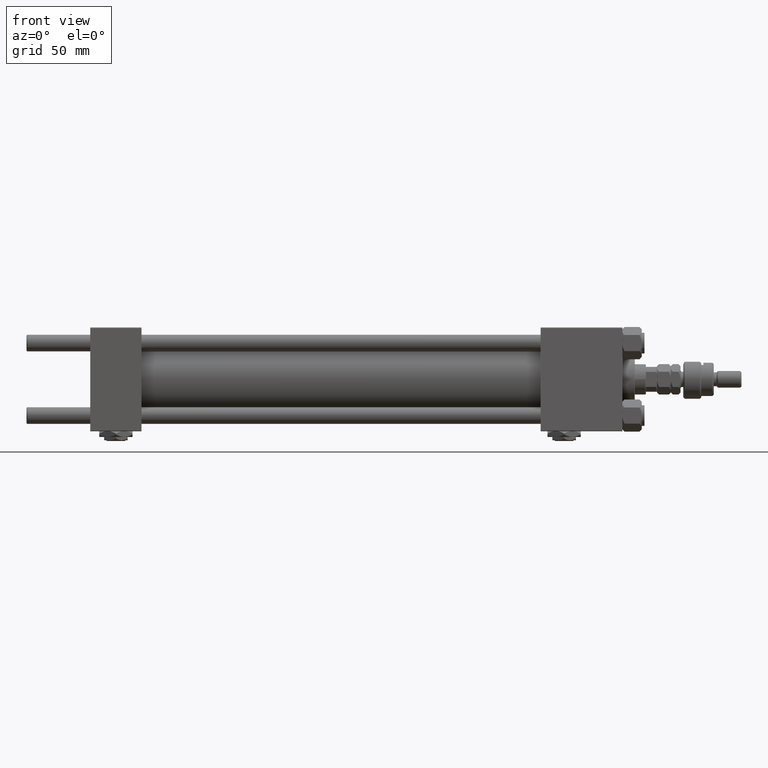
[diagram: clean part render]
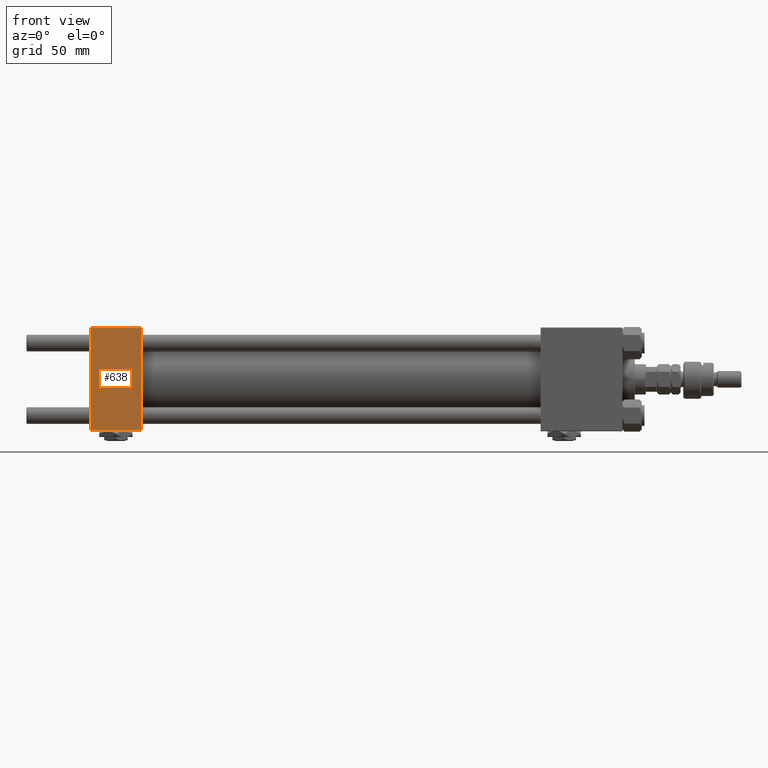
[diagram: same view with one face highlighted and labeled with its STEP entity id]
A machine part, front view. The second image highlights one B-rep face of the part: STEP entity #638.
In plain terms, the highlighted planar face has unit normal (0, 1, 0).
Its self-contained STEP definition (entity closure, byte-faithful):
#638 = ADVANCED_FACE ( 'NONE', ( #15368 ), #27269, .F. ) ;
#1350 = DIRECTION ( 'NONE',  ( 0.000000000000000000, 9.251858538542971581E-17, -1.000000000000000000 ) ) ;
#2088 = ORIENTED_EDGE ( 'NONE', *, *, #45746, .T. ) ;
#2882 = CARTESIAN_POINT ( 'NONE',  ( 37.00000000000000000, -37.50000000000000000, -37.00000000000003553 ) ) ;
#4964 = AXIS2_PLACEMENT_3D ( 'NONE', #36104, #18961, #6534 ) ;
#6534 = DIRECTION ( 'NONE',  ( 0.000000000000000000, -9.251858538542971581E-17, 1.000000000000000000 ) ) ;
#7912 = VECTOR ( 'NONE', #45376, 1000.000000000000000 ) ;
#8823 = ORIENTED_EDGE ( 'NONE', *, *, #52404, .T. ) ;
#10142 = LINE ( 'NONE', #26757, #20652 ) ;
#11873 = CARTESIAN_POINT ( 'NONE',  ( 0.000000000000000000, -37.50000000000000711, 37.49999999999999289 ) ) ;
#12871 = VERTEX_POINT ( 'NONE', #31700 ) ;
#13336 = DIRECTION ( 'NONE',  ( -1.000000000000000000, 0.000000000000000000, 0.000000000000000000 ) ) ;
#15368 = FACE_OUTER_BOUND ( 'NONE', #49507, .T. ) ;
#18961 = DIRECTION ( 'NONE',  ( -0.000000000000000000, 1.000000000000000000, 9.251858538542971581E-17 ) ) ;
#20652 = VECTOR ( 'NONE', #1350, 1000.000000000000000 ) ;
#20704 = DIRECTION ( 'NONE',  ( 0.000000000000000000, 9.251858538542971581E-17, -1.000000000000000000 ) ) ;
#23622 = VECTOR ( 'NONE', #20704, 1000.000000000000000 ) ;
#26757 = CARTESIAN_POINT ( 'NONE',  ( 37.00000000000000000, -37.50000000000000711, 37.49999999999999289 ) ) ;
#27269 = PLANE ( 'NONE',  #4964 ) ;
#29565 = EDGE_CURVE ( 'NONE', #42987, #43363, #10142, .T. ) ;
#30959 = VERTEX_POINT ( 'NONE', #35070 ) ;
#31700 = CARTESIAN_POINT ( 'NONE',  ( 0.000000000000000000, -37.50000000000000000, -37.00000000000003553 ) ) ;
#33243 = CARTESIAN_POINT ( 'NONE',  ( 37.00000000000000000, -37.50000000000000000, -37.00000000000003553 ) ) ;
#34340 = ORIENTED_EDGE ( 'NONE', *, *, #41963, .T. ) ;
#35070 = CARTESIAN_POINT ( 'NONE',  ( 0.000000000000000000, -37.50000000000000711, 36.99999999999999289 ) ) ;
#36104 = CARTESIAN_POINT ( 'NONE',  ( 37.00000000000000000, -37.50000000000000711, 37.49999999999999289 ) ) ;
#37943 = LINE ( 'NONE', #47296, #49607 ) ;
#41963 = EDGE_CURVE ( 'NONE', #30959, #12871, #45838, .T. ) ;
#42987 = VERTEX_POINT ( 'NONE', #49387 ) ;
#43363 = VERTEX_POINT ( 'NONE', #2882 ) ;
#45376 = DIRECTION ( 'NONE',  ( 1.000000000000000000, 0.000000000000000000, 0.000000000000000000 ) ) ;
#45746 = EDGE_CURVE ( 'NONE', #12871, #43363, #49508, .T. ) ;
#45838 = LINE ( 'NONE', #11873, #23622 ) ;
#47296 = CARTESIAN_POINT ( 'NONE',  ( 37.00000000000000000, -37.50000000000000711, 36.99999999999999289 ) ) ;
#49387 = CARTESIAN_POINT ( 'NONE',  ( 37.00000000000000000, -37.50000000000000711, 36.99999999999999289 ) ) ;
#49507 = EDGE_LOOP ( 'NONE', ( #34340, #2088, #53017, #8823 ) ) ;
#49508 = LINE ( 'NONE', #33243, #7912 ) ;
#49607 = VECTOR ( 'NONE', #13336, 1000.000000000000000 ) ;
#52404 = EDGE_CURVE ( 'NONE', #42987, #30959, #37943, .T. ) ;
#53017 = ORIENTED_EDGE ( 'NONE', *, *, #29565, .F. ) ;